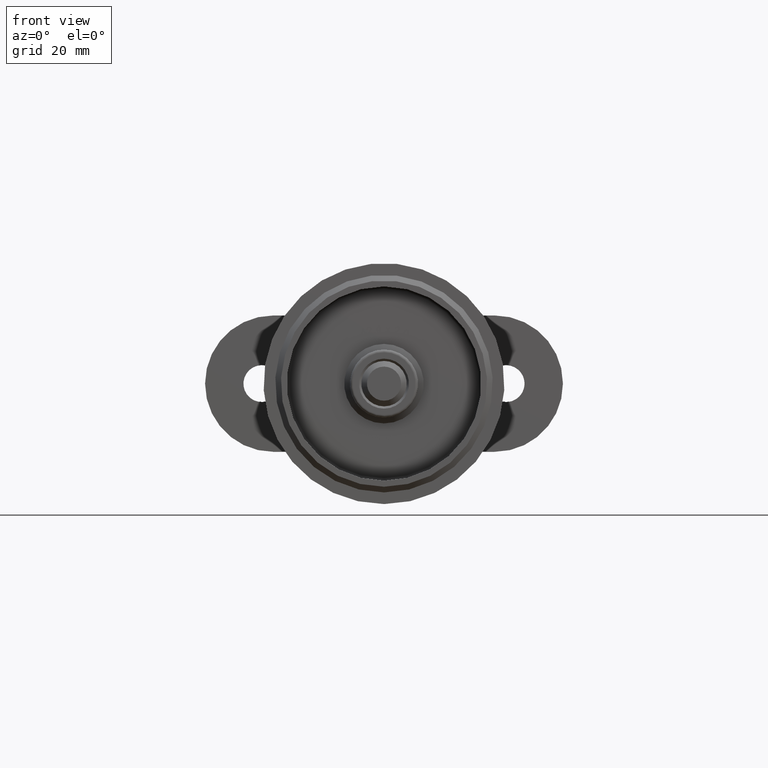
[diagram: clean part render]
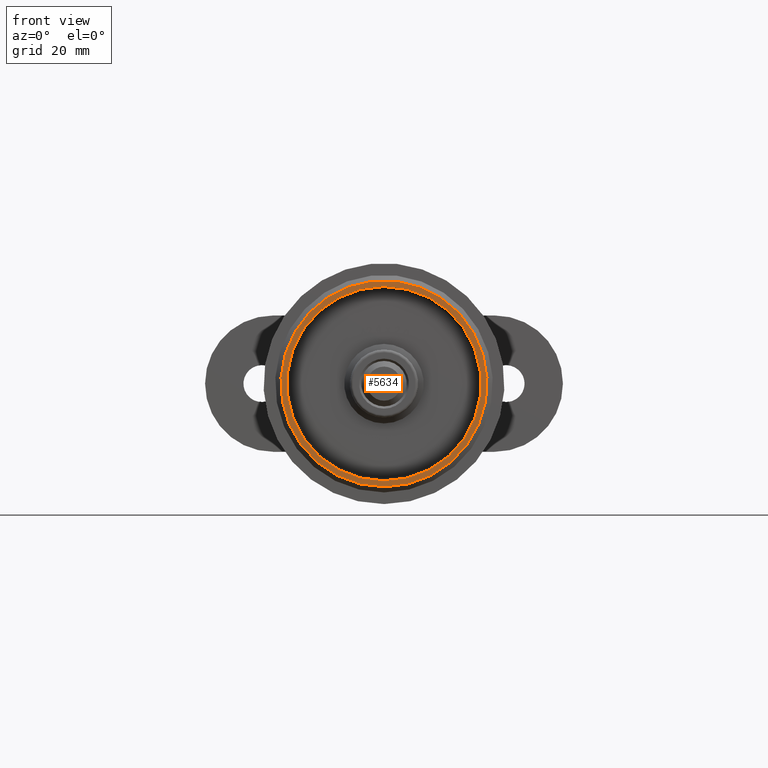
[diagram: same view with one face highlighted and labeled with its STEP entity id]
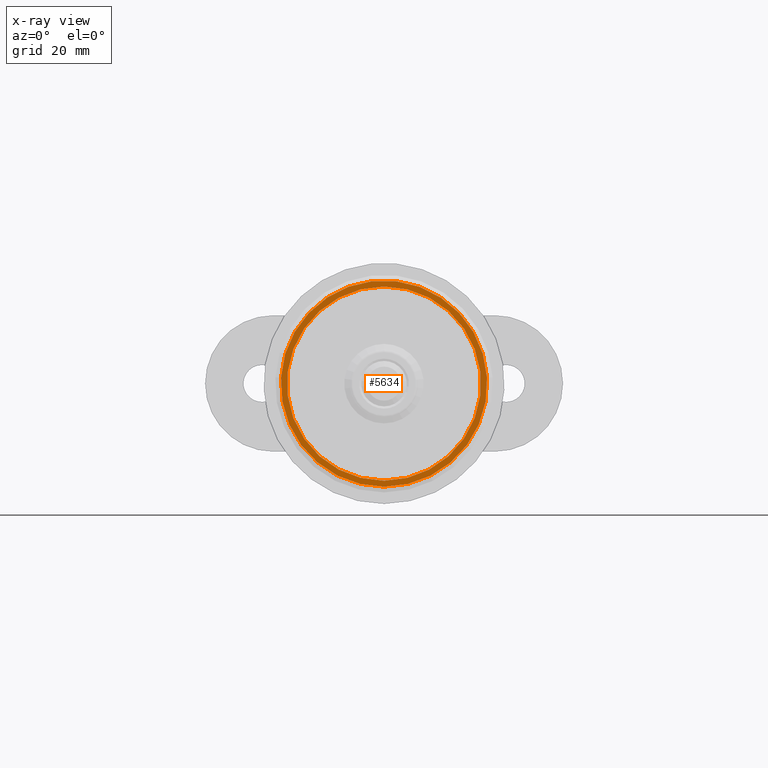
[diagram: x-ray of the same camera — body ghosted, the highlighted face saturated]
A machine part, front view. The second image highlights one B-rep face of the part: STEP entity #5634.
The next image is the same camera in x-ray: the body ghosted, the highlighted face saturated — about 0% of this face is hidden behind the body in this view.
In plain terms, the highlighted planar face has unit normal (0, -1, 0).
Its self-contained STEP definition (entity closure, byte-faithful):
#125 = EDGE_LOOP ( 'NONE', ( #9182 ) ) ;
#241 = CIRCLE ( 'NONE', #6739, 18.15000000000000568 ) ;
#904 = ORIENTED_EDGE ( 'NONE', *, *, #11894, .F. ) ;
#1749 = DIRECTION ( 'NONE',  ( 0.000000000000000000, 0.000000000000000000, -1.000000000000000000 ) ) ;
#4602 = CARTESIAN_POINT ( 'NONE',  ( 19.14999999999999858, -6.429395695523627079E-17, 0.000000000000000000 ) ) ;
#5634 = ADVANCED_FACE ( 'NONE', ( #17331, #11168 ), #6020, .T. ) ;
#6020 = PLANE ( 'NONE',  #13104 ) ;
#6739 = AXIS2_PLACEMENT_3D ( 'NONE', #7274, #17215, #12798 ) ;
#7274 = CARTESIAN_POINT ( 'NONE',  ( 0.000000000000000000, -6.429395695523627079E-17, 0.000000000000000000 ) ) ;
#8468 = VERTEX_POINT ( 'NONE', #10552 ) ;
#8572 = DIRECTION ( 'NONE',  ( 0.000000000000000000, 0.000000000000000000, -1.000000000000000000 ) ) ;
#8942 = DIRECTION ( 'NONE',  ( 0.000000000000000000, -1.000000000000000000, -0.000000000000000000 ) ) ;
#9182 = ORIENTED_EDGE ( 'NONE', *, *, #17170, .T. ) ;
#9212 = EDGE_LOOP ( 'NONE', ( #904 ) ) ;
#10552 = CARTESIAN_POINT ( 'NONE',  ( 0.000000000000000000, -6.429395695523627079E-17, -18.15000000000000568 ) ) ;
#11168 = FACE_BOUND ( 'NONE', #9212, .T. ) ;
#11333 = AXIS2_PLACEMENT_3D ( 'NONE', #18778, #14326, #8572 ) ;
#11894 = EDGE_CURVE ( 'NONE', #18202, #18202, #16731, .T. ) ;
#12798 = DIRECTION ( 'NONE',  ( 0.000000000000000000, 0.000000000000000000, -1.000000000000000000 ) ) ;
#13104 = AXIS2_PLACEMENT_3D ( 'NONE', #4602, #8942, #1749 ) ;
#13518 = CARTESIAN_POINT ( 'NONE',  ( 0.000000000000000000, 0.000000000000000000, -17.10000000000000142 ) ) ;
#14326 = DIRECTION ( 'NONE',  ( -0.000000000000000000, -1.000000000000000000, -0.000000000000000000 ) ) ;
#16731 = CIRCLE ( 'NONE', #11333, 17.10000000000000142 ) ;
#17170 = EDGE_CURVE ( 'NONE', #8468, #8468, #241, .T. ) ;
#17215 = DIRECTION ( 'NONE',  ( -0.000000000000000000, -1.000000000000000000, -0.000000000000000000 ) ) ;
#17331 = FACE_OUTER_BOUND ( 'NONE', #125, .T. ) ;
#18202 = VERTEX_POINT ( 'NONE', #13518 ) ;
#18778 = CARTESIAN_POINT ( 'NONE',  ( 0.000000000000000000, 0.000000000000000000, 0.000000000000000000 ) ) ;